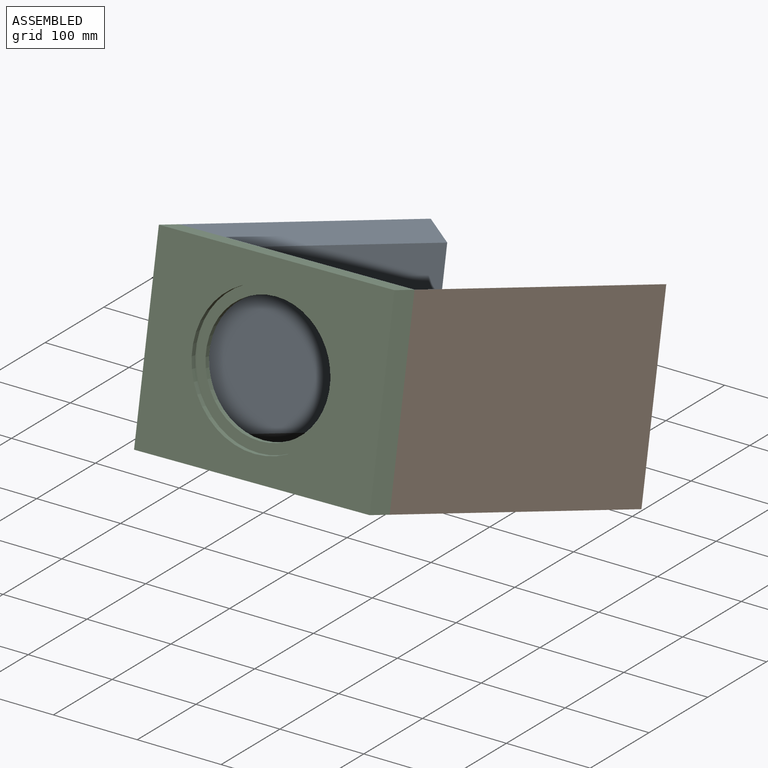
[diagram: assembled view]
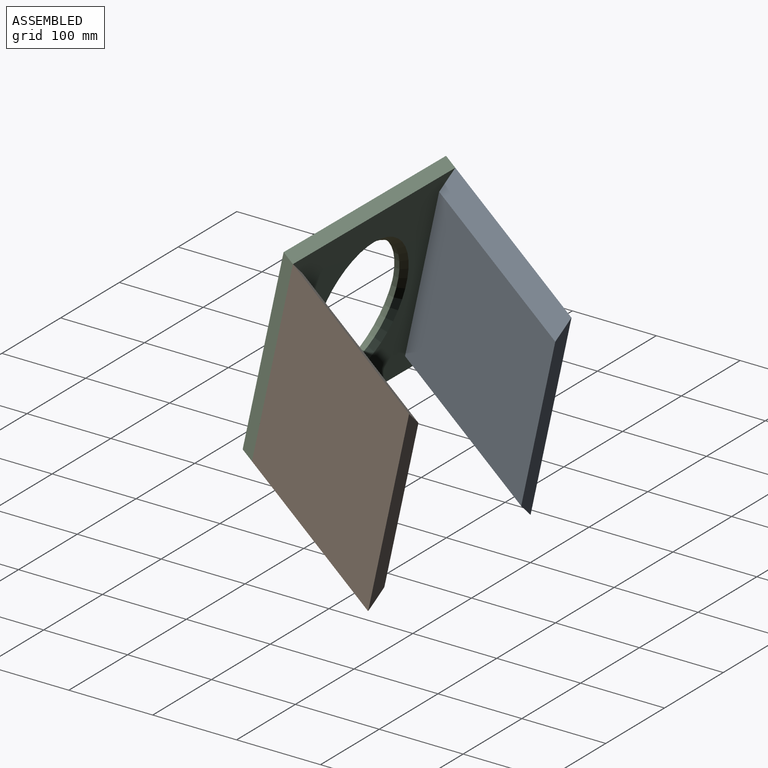
[diagram: assembled view, second angle]
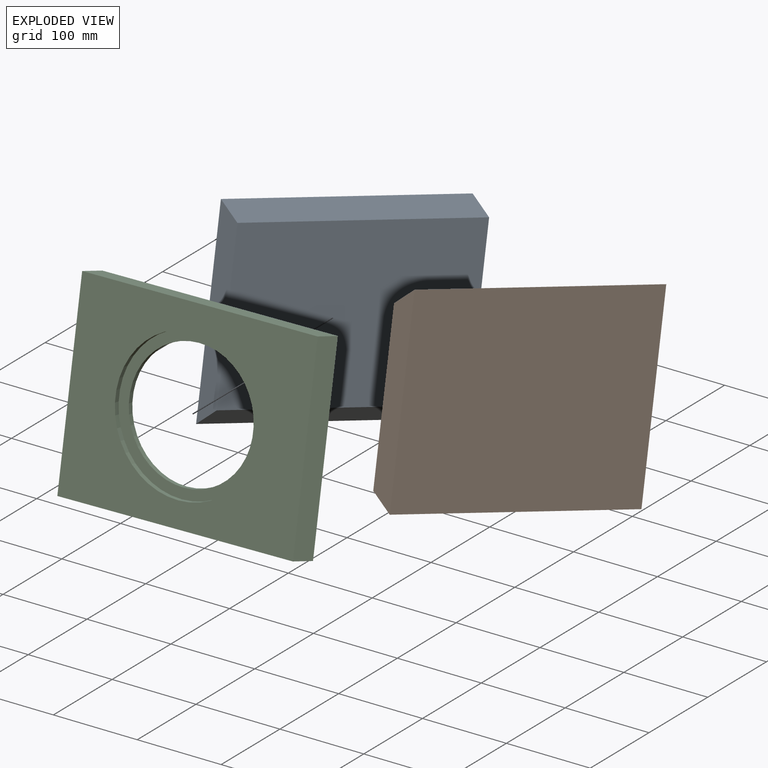
[diagram: exploded view]
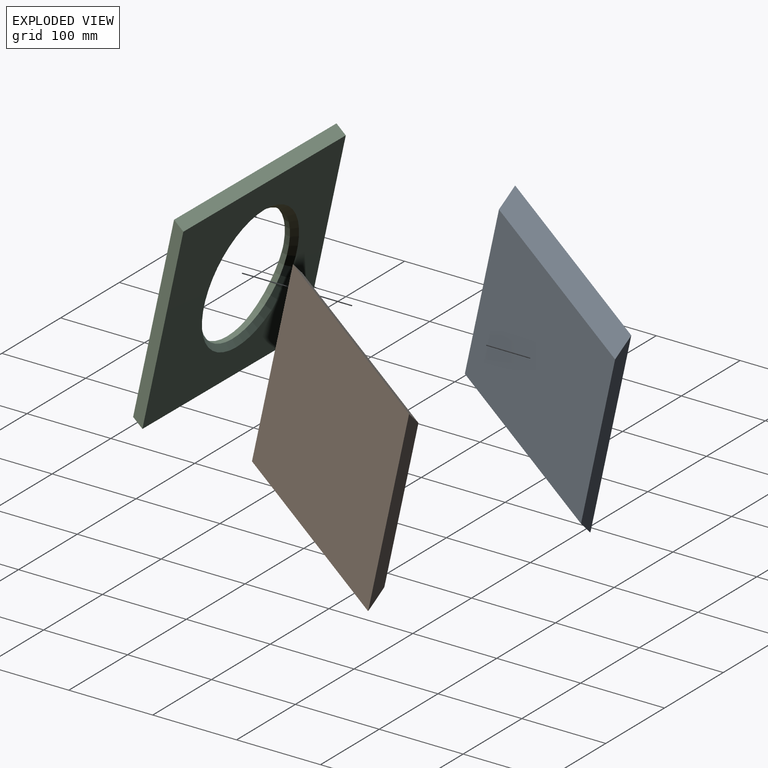
[diagram: exploded view, second angle]
ASSEMBLY  parts=3 mates=2
PART A: 6 faces, bbox 19.1x285.8x228.6 mm
  f0: plane 274.75x228.6mm, normal (1,0,0), area 62808.2mm2, adj f2,f3,f4,f5
  f1: plane 274.75x190.5mm, normal (-1,0,0), area 52340.2mm2, adj f2,f3,f4,f5
  f2: plane 228.6x19.05mm, normal (0.5,0.87,0), area 4609.5mm2, adj f0,f1,f4,f5
  f3: plane 228.6x19.05mm, normal (-0.5,-0.87,0), area 4609.5mm2, adj f0,f1,f4,f5
  f4: plane 285.75x19.05mm, normal (-0.71,0,-0.71), area 7402mm2, adj f0,f1,f2,f3
  f5: plane 285.75x19.05mm, normal (-0.71,0,0.71), area 7402mm2, adj f0,f1,f2,f3
PART B: 6 faces, bbox 19.1x285.8x228.6 mm
  f0: plane 274.75x190.5mm, normal (1,0,0), area 52340.2mm2, adj f2,f3,f4,f5
  f1: plane 274.75x228.6mm, normal (-1,0,0), area 62808.2mm2, adj f2,f3,f4,f5
  f2: plane 228.6x19.05mm, normal (0.5,0.87,0), area 4609.5mm2, adj f0,f1,f4,f5
  f3: plane 228.6x19.05mm, normal (-0.5,-0.87,0), area 4609.5mm2, adj f0,f1,f4,f5
  f4: plane 285.75x19.05mm, normal (0.71,0,-0.71), area 7402mm2, adj f0,f1,f2,f3
  f5: plane 285.75x19.05mm, normal (0.71,0,0.71), area 7402mm2, adj f0,f1,f2,f3
PART C: 10 faces, bbox 290.4x19.1x228.6 mm
  f0: plane 279.4x228.6mm, normal (0,1,0), area 43839.9mm2, adj f1,f2,f4,f5,f9
  f1: plane 290.4x19.05mm, normal (0,0,-1), area 5322.6mm2, adj f0,f3,f4,f5
  f2: plane 290.4x19.05mm, normal (0,0,1), area 5322.6mm2, adj f0,f3,f4,f5
  f3: plane 279.4x228.6mm, normal (0,-1,0), area 40904.9mm2, adj f1,f2,f4,f5,f6
  f4: plane 228.6x19.05mm, normal (0.87,0.5,0), area 5028.5mm2, adj f0,f1,f2,f3
  f5: plane 228.6x19.05mm, normal (-0.87,-0.5,0), area 5028.5mm2, adj f0,f1,f2,f3
  f6: cylinder r=85.5mm len=171mm, axis (0,-1,0), area 3491.9mm2, adj f3,f7
  f7: plane 171x171mm, normal (0,-1,0), area 5994.2mm2, adj f6,f8
  f8: cylinder r=73.5mm len=147mm, axis (0,-1,0), area 2863.2mm2, adj f7,f9
  f9: cone r=79.85mm half-angle=45deg, axis (0,1,0), area 4326.4mm2, adj f0,f8
PLACE A rot(axis=(0.25,0.96,-0.1),176.2deg) t=(-697.44,-30.73,-184.9)mm
PLACE B rot(axis=(0.25,0.96,-0.1),176.2deg) t=(-440.07,-28.9,-181.75)mm
PLACE C rot(axis=(0,0.99,-0.1),179.3deg) t=(-650.67,-142.2,-161.01)mm
MATE fastened B.f3 <-> C.f0  axis (0,-0.98,0.2) through (-503.96,-164.5,-271.12)mm
MATE fastened A.f3 <-> C.f0  axis (0,-0.98,0.2) through (-783.33,-166.49,-274.54)mm
